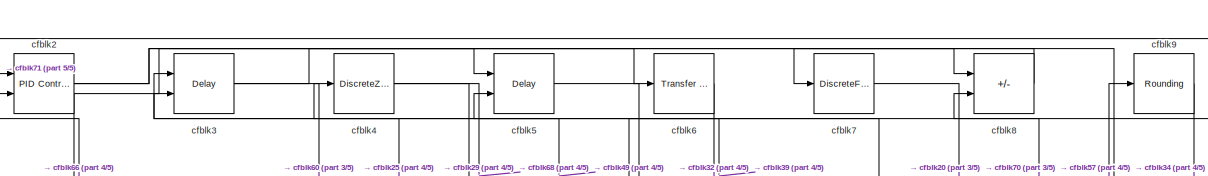
[diagram: root canvas - part 1/5, full width, top band]
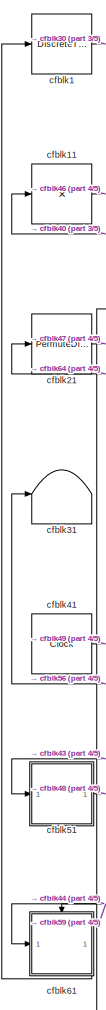
[diagram: root canvas - part 2/5, left side, full height]
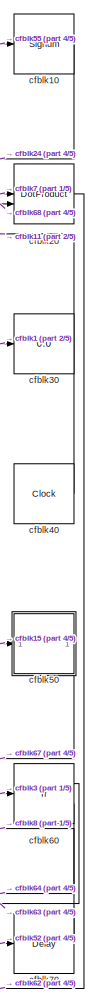
[diagram: root canvas - part 3/5, right side, full height]
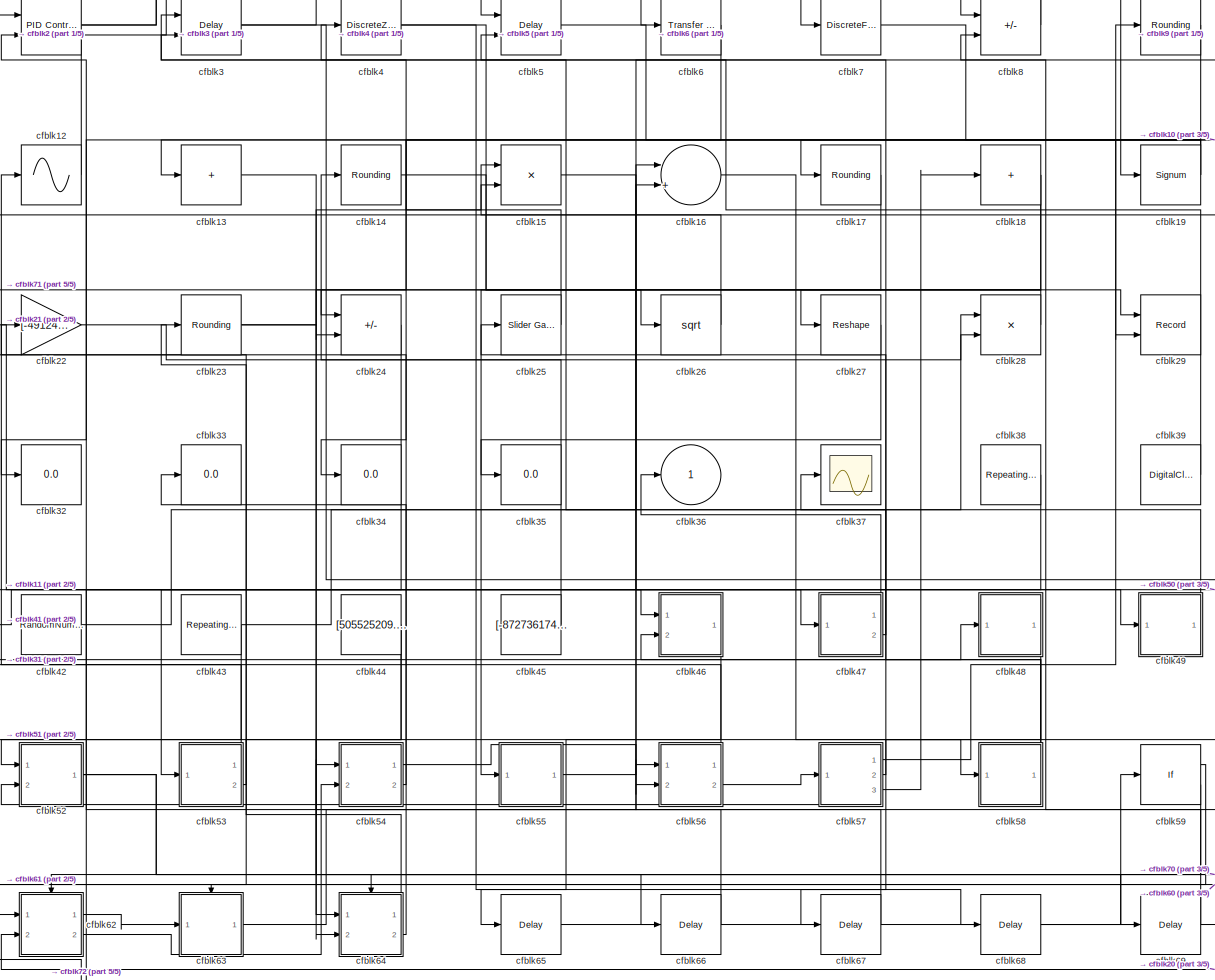
[diagram: root canvas - part 4/5, most of the canvas]
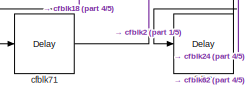
[diagram: root canvas - part 5/5, bottom left region]
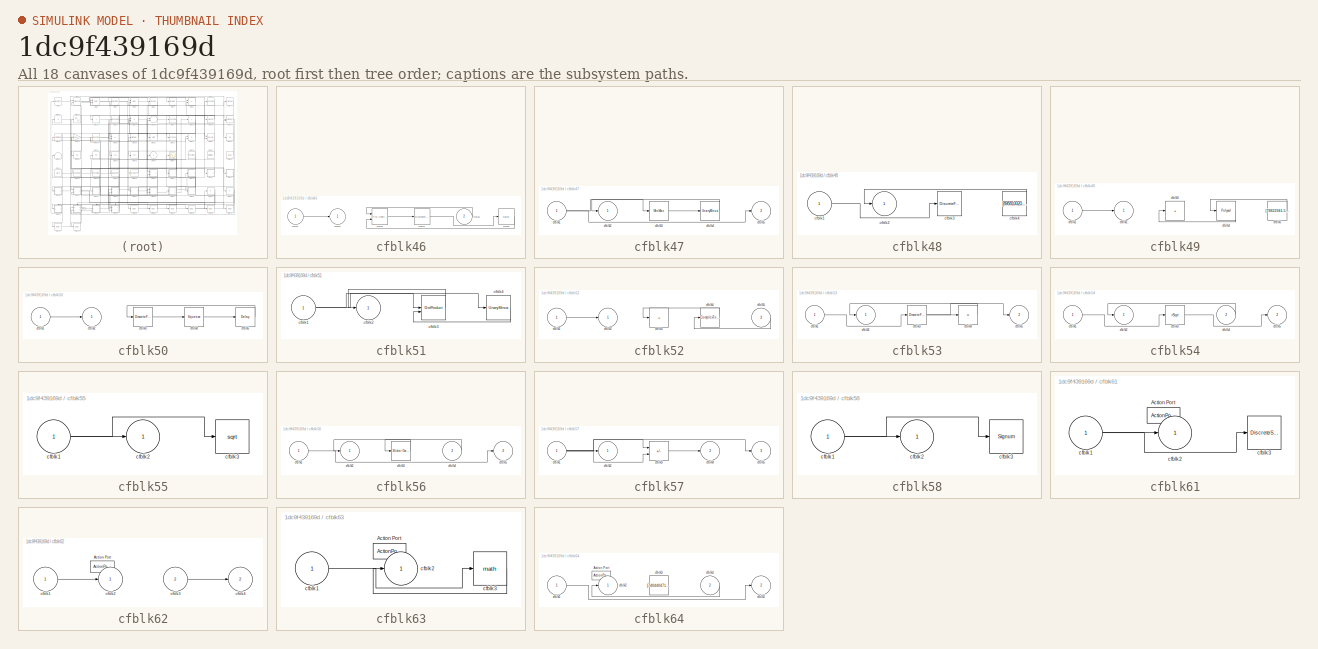
[diagram: thumbnail index - all 18 canvases of the model, root first then tree order]
MODEL slx_1dc9f439169d
KIND model
CONFIG AbsTol = auto
CONFIG EnableMultiTasking = off
CONFIG FixedStep = auto
CONFIG MaxStep = auto
CONFIG MinStep = auto
CONFIG RelTol = 1e-3
CONFIG SampleTimeConstraint = Unconstrained
CONFIG SolverName = VariableStepAuto
CONFIG StartTime = 0.0
CONFIG StopTime = 10.0
BLOCK [DiscreteTransferFcn] cfblk1
  InputPortMap = u0
  Ports = [1, 1]
  SampleTime = 1
BLOCK [Signum] cfblk10
BLOCK [Product] cfblk11
  Inputs = *
  Ports = [1, 1]
BLOCK [Sin] cfblk12
  Ports = [1, 1]
  SampleTime = 0
  TimeSource = Use external signal
BLOCK [Sum] cfblk13
  IconShape = rectangular
  Inputs = +
  Ports = [1, 1]
BLOCK [Rounding] cfblk14
BLOCK [Product] cfblk15
  Ports = [2, 1]
BLOCK [Sum] cfblk16
  Inputs = |++
  Ports = [2, 1]
BLOCK [Rounding] cfblk17
BLOCK [Sum] cfblk18
  IconShape = rectangular
  Inputs = +
  Ports = [1, 1]
BLOCK [Signum] cfblk19
BLOCK [Reference] cfblk2  REF=slpidlib/PID Controller (2DOF)
  Ports = [2, 1]
  SourceBlock = slpidlib/PID Controller (2DOF)
  SourceProductBaseCode = SL
  SourceType = PID 2dof
BLOCK [DotProduct] cfblk20
  OutDataTypeStr = Inherit: Inherit via internal rule
BLOCK [PermuteDimensions] cfblk21
BLOCK [Gain] cfblk22
  Gain = [-491249915.763414]
BLOCK [Rounding] cfblk23
BLOCK [Sum] cfblk24
  IconShape = rectangular
  Inputs = --
  Ports = [2, 1]
BLOCK [Reference] cfblk25  REF=simulink/Math
Operations/Slider
Gain
  Ports = [1, 1]
  SourceBlock = simulink/Math\nOperations/Slider\nGain
  SourceProductBaseCode = SL
  SourceType = Slider Gain
BLOCK [Sqrt] cfblk26
BLOCK [Reshape] cfblk27
  Ports = [1, 1]
BLOCK [Product] cfblk28
  Inputs = **
  Ports = [2, 1]
BLOCK [Record] cfblk29
  CompatibilityTag = XY
  FileSettingsInternal = {"entries":[{"content":{"excelSettings":{"content":{},"type":"Streamout.ExcelSettings"}},"type":"Streamout.FileSettingStorage","uuid":"f730e0e7-53fe-464a-9a82-0900e3942749"}],"packageUris":["http://schema.mathworks.com/mf0/streamout_blocks/R2020a"],"version":"1.0"}
  Layout = [1 1]
  Ports = [2]
  SignalsInternal = {"entries":[{"content":{"signals":[{"content":{"blockPath":["sampleModel205/cfblk29"],"channel":[],"dimensions":[1,1],"domain":"sampleModel205/cfblk29","lineColor":"#a2142f","plots":[1],"port":1,"sid":[""],"signalID":7899,"signalName":"cfblk4"},"type":"RecordBlkView.Signal","uuid":"9c209e98-6881-4a35-a685-ad8e26a1ce75"},{"content":{"blockPath":["sampleModel205/cfblk29"],"channel":[],"dimensions":[...<+383ch>
  VisualizationBindings = {"xyplotplugin":{"info":[{"series":[{"bindingParametersList":[{"parameter":"X-Axis","signalID":7899,"signalName":"cfblk4"},{"parameter":"Y-Axis","signalID":7903,"signalName":"cfblk5"}],"seriesID":36192}],"subplotID":1}]}}
BLOCK [Delay] cfblk3
  DelayLengthSource = Input port
  InputPortMap = u0,p1
  Ports = [2, 1]
  SampleTime = 1
BLOCK [Display] cfblk30
  Decimation = 1
  Ports = [1]
BLOCK [Terminator] cfblk31
BLOCK [Display] cfblk32
  Decimation = 1
  Ports = [1]
BLOCK [Display] cfblk33
  Decimation = 1
  Ports = [1]
BLOCK [Display] cfblk34
  Decimation = 1
  Ports = [1]
BLOCK [Display] cfblk35
  Decimation = 1
  Ports = [1]
BLOCK [Outport] cfblk36
BLOCK [Scope] cfblk37
  Floating = off
  NumInputPorts = 1
  Ports = [1]
BLOCK [Reference] cfblk38  REF=simulink/Sources/Repeating
Sequence
Stair
  Ports = [0, 1]
  SourceBlock = simulink/Sources/Repeating\nSequence\nStair
  SourceProductBaseCode = SL
  SourceType = Repeating Sequence Stair
BLOCK [DigitalClock] cfblk39
BLOCK [DiscreteZeroPole] cfblk4
  Gain = 1
  Poles = [0 0.5]
BLOCK [Clock] cfblk40
BLOCK [Clock] cfblk41
BLOCK [RandomNumber] cfblk42
  Mean = [64196.223504]
  SampleTime = 0.1
  Seed = [337225866.000000]
  Variance = [2477.301386]
BLOCK [Reference] cfblk43  REF=simulink/Sources/Repeating
Sequence
Stair
  Ports = [0, 1]
  SourceBlock = simulink/Sources/Repeating\nSequence\nStair
  SourceProductBaseCode = SL
  SourceType = Repeating Sequence Stair
BLOCK [Constant] cfblk44
  SampleTime = 1
  Value = [505525209.583436]
BLOCK [Constant] cfblk45
  SampleTime = 1
  Value = [-872736174.797935]
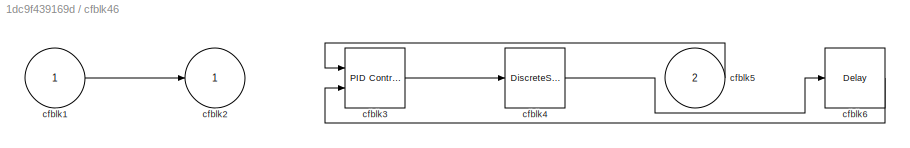
BLOCK [SubSystem] cfblk46
  Ports = [2, 1]
  RequestExecContextInheritance = off
BLOCK [Inport] cfblk46/cfblk1
BLOCK [Outport] cfblk46/cfblk2
BLOCK [Reference] cfblk46/cfblk3  REF=slpidlib/PID Controller (2DOF)
  Ports = [2, 1]
  SourceBlock = slpidlib/PID Controller (2DOF)
  SourceProductBaseCode = SL
  SourceType = PID 2dof
BLOCK [DiscreteStateSpace] cfblk46/cfblk4
BLOCK [Inport] cfblk46/cfblk5
  Port = 2
BLOCK [Delay] cfblk46/cfblk6
  InputPortMap = u0
  Ports = [1, 1]
  SampleTime = 1
BLOCK [SubSystem] cfblk47
  Ports = [1, 2]
  RequestExecContextInheritance = off
BLOCK [Inport] cfblk47/cfblk1
BLOCK [Outport] cfblk47/cfblk2
BLOCK [MinMax] cfblk47/cfblk3
  Function = max
  Ports = [1, 1]
BLOCK [UnaryMinus] cfblk47/cfblk4
BLOCK [Outport] cfblk47/cfblk5
  Port = 2
BLOCK [SubSystem] cfblk48
  Ports = [1, 1]
  RequestExecContextInheritance = off
BLOCK [Inport] cfblk48/cfblk1
BLOCK [Outport] cfblk48/cfblk2
BLOCK [DiscreteFir] cfblk48/cfblk3
  InputPortMap = u0
  OutputPortMap = o0
  Ports = [1, 1]
  SampleTime = 1
BLOCK [Constant] cfblk48/cfblk4
  SampleTime = 1
  Value = [895810020.108873]
BLOCK [SubSystem] cfblk49
  Ports = [1, 1]
  RequestExecContextInheritance = off
BLOCK [Inport] cfblk49/cfblk1
BLOCK [Outport] cfblk49/cfblk2
BLOCK [Sum] cfblk49/cfblk3
  IconShape = rectangular
  Inputs = +
  Ports = [1, 1]
BLOCK [Polyval] cfblk49/cfblk4
  Coefs = [ +2.081618890e-019, -1.441693666e-014, +4.719686976e-010, -8.536869453e-006, +1.621573104e-001, -8.087801117e+001 ]
BLOCK [Constant] cfblk49/cfblk5
  SampleTime = 1
  Value = [78822941.554705]
BLOCK [Delay] cfblk5
  InputPortMap = u0,e6
  Ports = [2, 1]
  SampleTime = 1
  ShowEnablePort = on
BLOCK [SubSystem] cfblk50
  Ports = [1, 1]
  RequestExecContextInheritance = off
BLOCK [Inport] cfblk50/cfblk1
BLOCK [Outport] cfblk50/cfblk2
BLOCK [DiscreteFir] cfblk50/cfblk3
  InputPortMap = u0
  OutputPortMap = o0
  Ports = [1, 1]
  SampleTime = 1
BLOCK [Squeeze] cfblk50/cfblk4
BLOCK [Delay] cfblk50/cfblk5
  InputPortMap = u0
  Ports = [1, 1]
  SampleTime = 1
BLOCK [SubSystem] cfblk51
  Ports = [1, 1]
  RequestExecContextInheritance = off
BLOCK [Inport] cfblk51/cfblk1
BLOCK [Outport] cfblk51/cfblk2
BLOCK [DotProduct] cfblk51/cfblk3
  OutDataTypeStr = Inherit: Inherit via internal rule
BLOCK [UnaryMinus] cfblk51/cfblk4
BLOCK [SubSystem] cfblk52
  Ports = [2, 1]
  RequestExecContextInheritance = off
BLOCK [Inport] cfblk52/cfblk1
BLOCK [Outport] cfblk52/cfblk2
BLOCK [Sum] cfblk52/cfblk3
  IconShape = rectangular
  Inputs = +
  Ports = [1, 1]
BLOCK [ComplexToMagnitudeAngle] cfblk52/cfblk4
  Ports = [1, 2]
BLOCK [Inport] cfblk52/cfblk5
  Port = 2
BLOCK [SubSystem] cfblk53
  Ports = [1, 2]
  RequestExecContextInheritance = off
BLOCK [Inport] cfblk53/cfblk1
BLOCK [Outport] cfblk53/cfblk2
BLOCK [DiscreteFir] cfblk53/cfblk3
  InputPortMap = u0
  OutputPortMap = o0
  Ports = [1, 1]
  SampleTime = 1
BLOCK [Product] cfblk53/cfblk4
  Inputs = *
  Ports = [1, 1]
BLOCK [Outport] cfblk53/cfblk5
  Port = 2
BLOCK [SubSystem] cfblk54
  Ports = [2, 2]
  RequestExecContextInheritance = off
BLOCK [Inport] cfblk54/cfblk1
BLOCK [Outport] cfblk54/cfblk2
BLOCK [Sqrt] cfblk54/cfblk3
  AlgorithmType = Newton-Raphson
  Operator = rSqrt
BLOCK [Inport] cfblk54/cfblk4
  Port = 2
BLOCK [Outport] cfblk54/cfblk5
  Port = 2
BLOCK [SubSystem] cfblk55
  Ports = [1, 1]
  RequestExecContextInheritance = off
BLOCK [Inport] cfblk55/cfblk1
BLOCK [Outport] cfblk55/cfblk2
BLOCK [Sqrt] cfblk55/cfblk3
BLOCK [SubSystem] cfblk56
  Ports = [2, 2]
  RequestExecContextInheritance = off
BLOCK [Inport] cfblk56/cfblk1
BLOCK [Outport] cfblk56/cfblk2
BLOCK [Reference] cfblk56/cfblk3  REF=simulink/Math
Operations/Slider
Gain
  Ports = [1, 1]
  SourceBlock = simulink/Math\nOperations/Slider\nGain
  SourceProductBaseCode = SL
  SourceType = Slider Gain
BLOCK [Inport] cfblk56/cfblk4
  Port = 2
BLOCK [Outport] cfblk56/cfblk5
  Port = 2
BLOCK [SubSystem] cfblk57
  Ports = [1, 3]
  RequestExecContextInheritance = off
BLOCK [Inport] cfblk57/cfblk1
BLOCK [Outport] cfblk57/cfblk2
BLOCK [Sum] cfblk57/cfblk3
  IconShape = rectangular
  Inputs = +-
  Ports = [2, 1]
BLOCK [Outport] cfblk57/cfblk4
  Port = 2
BLOCK [Outport] cfblk57/cfblk5
  Port = 3
BLOCK [SubSystem] cfblk58
  Ports = [1, 1]
  RequestExecContextInheritance = off
BLOCK [Inport] cfblk58/cfblk1
BLOCK [Outport] cfblk58/cfblk2
BLOCK [Signum] cfblk58/cfblk3
BLOCK [If] cfblk59
  IfExpression = u1 >= 0
  Ports = [1, 2]
  SampleTime = 1
BLOCK [Reference] cfblk6  REF=simulink/Discrete/Transfer Fcn
First Order
  Ports = [1, 1]
  SourceBlock = simulink/Discrete/Transfer Fcn\nFirst Order
  SourceProductBaseCode = SL
  SourceType = First Order Transfer Fcn
BLOCK [If] cfblk60
  IfExpression = u1 >= 0
  Ports = [1, 2]
  SampleTime = 1
BLOCK [SubSystem] cfblk61
  Ports = [1, 1, 0, 0, 0, 0, 0, 1]
  RequestExecContextInheritance = off
  TreatAsAtomicUnit = on
BLOCK [ActionPort] cfblk61/Action Port
  ActionPortLabel = if(u1 >= 0)
BLOCK [Inport] cfblk61/cfblk1
BLOCK [Outport] cfblk61/cfblk2
BLOCK [DiscreteStateSpace] cfblk61/cfblk3
  SampleTime = -1
BLOCK [SubSystem] cfblk62
  Ports = [2, 2, 0, 0, 0, 0, 0, 1]
  RequestExecContextInheritance = off
  TreatAsAtomicUnit = on
BLOCK [ActionPort] cfblk62/Action Port
  ActionPortLabel = else
BLOCK [Inport] cfblk62/cfblk1
BLOCK [Outport] cfblk62/cfblk2
BLOCK [Inport] cfblk62/cfblk3
  Port = 2
BLOCK [Outport] cfblk62/cfblk4
  Port = 2
BLOCK [SubSystem] cfblk63
  Ports = [1, 1, 0, 0, 0, 0, 0, 1]
  RequestExecContextInheritance = off
  TreatAsAtomicUnit = on
BLOCK [ActionPort] cfblk63/Action Port
  ActionPortLabel = if(u1 >= 0)
BLOCK [Inport] cfblk63/cfblk1
BLOCK [Outport] cfblk63/cfblk2
BLOCK [Math] cfblk63/cfblk3
  Ports = [1, 1]
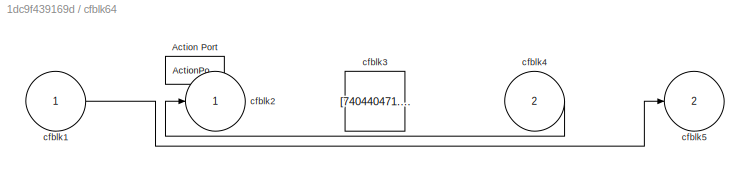
BLOCK [SubSystem] cfblk64
  Ports = [2, 2, 0, 0, 0, 0, 0, 1]
  RequestExecContextInheritance = off
  TreatAsAtomicUnit = on
BLOCK [ActionPort] cfblk64/Action Port
  ActionPortLabel = else
BLOCK [Inport] cfblk64/cfblk1
BLOCK [Outport] cfblk64/cfblk2
BLOCK [Constant] cfblk64/cfblk3
  SampleTime = 1
  Value = [740440471.780683]
BLOCK [Inport] cfblk64/cfblk4
  Port = 2
BLOCK [Outport] cfblk64/cfblk5
  Port = 2
BLOCK [Delay] cfblk65
  InputPortMap = u0
  Ports = [1, 1]
  SampleTime = 1
BLOCK [Delay] cfblk66
  InputPortMap = u0
  Ports = [1, 1]
  SampleTime = 1
BLOCK [Delay] cfblk67
  InputPortMap = u0
  Ports = [1, 1]
  SampleTime = 1
BLOCK [Delay] cfblk68
  InputPortMap = u0
  Ports = [1, 1]
  SampleTime = 1
BLOCK [Delay] cfblk69
  InputPortMap = u0
  Ports = [1, 1]
  SampleTime = 1
BLOCK [DiscreteFir] cfblk7
  InputPortMap = u0
  OutputPortMap = o0
  Ports = [1, 1]
  SampleTime = 1
BLOCK [Delay] cfblk70
  InputPortMap = u0
  Ports = [1, 1]
  SampleTime = 1
BLOCK [Delay] cfblk71
  InputPortMap = u0
  Ports = [1, 1]
  SampleTime = 1
BLOCK [Delay] cfblk72
  InputPortMap = u0
  Ports = [1, 1]
  SampleTime = 1
BLOCK [Sum] cfblk8
  IconShape = rectangular
  Inputs = +-
  Ports = [2, 1]
BLOCK [Rounding] cfblk9
LINE cfblk10:1 -> cfblk24:1
LINE cfblk11:1 -> cfblk46:1
LINE cfblk12:1 -> cfblk19:1
LINE cfblk13:1 -> cfblk64:1
LINE cfblk14:1 -> cfblk26:1
LINE cfblk15:1 -> cfblk50:1
LINE cfblk16:1 -> cfblk58:1
LINE cfblk17:1 -> cfblk55:1
NET cfblk18:1 -> cfblk24:2, cfblk71:1
NET cfblk19:1 -> cfblk13:1, cfblk17:1
LINE cfblk1:1 -> cfblk30:1
LINE cfblk20:1 -> cfblk62:2
LINE cfblk21:1 -> cfblk47:1
LINE cfblk22:1 -> cfblk28:2
NET cfblk23:1 -> cfblk15:2, cfblk66:1
LINE cfblk24:1 -> cfblk72:1
LINE cfblk25:1 -> cfblk4:1
LINE cfblk26:1 -> cfblk15:1
LINE cfblk27:1 -> cfblk35:1
LINE cfblk28:1 -> cfblk27:1
NET cfblk2:1 -> cfblk5:1, cfblk8:1
LINE cfblk38:1 -> cfblk53:1
LINE cfblk39:1 -> cfblk3:1
NET cfblk3:1 -> cfblk60:1, cfblk6:1
LINE cfblk40:1 -> cfblk11:1
LINE cfblk41:1 -> cfblk49:1
LINE cfblk42:1 -> cfblk28:1
NET cfblk43:1 -> cfblk16:2, cfblk51:1
NET cfblk44:1 -> cfblk61:1, cfblk64:2
LINE cfblk45:1 -> cfblk14:1
LINE cfblk46/cfblk1:1 -> cfblk46/cfblk2:1
LINE cfblk46/cfblk3:1 -> cfblk46/cfblk4:1
LINE cfblk46/cfblk4:1 -> cfblk46/cfblk6:1
LINE cfblk46/cfblk5:1 -> cfblk46/cfblk3:1
LINE cfblk46/cfblk6:1 -> cfblk46/cfblk3:2
LINE cfblk46:1 -> cfblk65:1
NET cfblk47/cfblk1:1 -> cfblk47/cfblk3:1, cfblk47/cfblk5:1
LINE cfblk47/cfblk3:1 -> cfblk47/cfblk4:1
LINE cfblk47/cfblk4:1 -> cfblk47/cfblk2:1
LINE cfblk47:1 -> cfblk36:1
LINE cfblk47:2 -> cfblk25:1
LINE cfblk48/cfblk1:1 -> cfblk48/cfblk3:1
LINE cfblk48/cfblk4:1 -> cfblk48/cfblk2:1
LINE cfblk48:1 -> cfblk52:1
LINE cfblk49/cfblk1:1 -> cfblk49/cfblk2:1
LINE cfblk49/cfblk4:1 -> cfblk49/cfblk3:1
LINE cfblk49/cfblk5:1 -> cfblk49/cfblk4:1
LINE cfblk49:1 -> cfblk5:2
NET cfblk4:1 -> cfblk29:1, cfblk68:1
LINE cfblk50/cfblk1:1 -> cfblk50/cfblk2:1
LINE cfblk50/cfblk3:1 -> cfblk50/cfblk4:1
LINE cfblk50/cfblk4:1 -> cfblk50/cfblk5:1
LINE cfblk50/cfblk5:1 -> cfblk50/cfblk3:1
LINE cfblk50:1 -> cfblk67:1
NET cfblk51/cfblk1:1 -> cfblk51/cfblk3:1, cfblk51/cfblk4:1
LINE cfblk51/cfblk3:1 -> cfblk51/cfblk2:1
LINE cfblk51/cfblk4:1 -> cfblk51/cfblk3:2
LINE cfblk51:1 -> cfblk48:1
LINE cfblk52/cfblk1:1 -> cfblk52/cfblk2:1
LINE cfblk52/cfblk4:1 -> cfblk52/cfblk3:1
LINE cfblk52/cfblk5:1 -> cfblk52/cfblk4:1
NET cfblk52:1 -> cfblk69:1, cfblk70:1
LINE cfblk53/cfblk1:1 -> cfblk53/cfblk3:1
NET cfblk53/cfblk3:1 -> cfblk53/cfblk4:1, cfblk53/cfblk5:1
LINE cfblk53/cfblk4:1 -> cfblk53/cfblk2:1
LINE cfblk53:1 -> cfblk12:1
LINE cfblk53:2 -> cfblk22:1
LINE cfblk54/cfblk1:1 -> cfblk54/cfblk3:1
LINE cfblk54/cfblk3:1 -> cfblk54/cfblk5:1
LINE cfblk54/cfblk4:1 -> cfblk54/cfblk2:1
LINE cfblk54:1 -> cfblk56:2
LINE cfblk54:2 -> cfblk33:1
NET cfblk55/cfblk1:1 -> cfblk55/cfblk2:1, cfblk55/cfblk3:1
LINE cfblk55:1 -> cfblk10:1
LINE cfblk56/cfblk1:1 -> cfblk56/cfblk5:1
LINE cfblk56/cfblk3:1 -> cfblk56/cfblk2:1
LINE cfblk56/cfblk4:1 -> cfblk56/cfblk3:1
LINE cfblk56:1 -> cfblk31:1
LINE cfblk56:2 -> cfblk57:1
NET cfblk57/cfblk1:1 -> cfblk57/cfblk2:1, cfblk57/cfblk3:1, cfblk57/cfblk3:2, cfblk57/cfblk5:1
LINE cfblk57/cfblk3:1 -> cfblk57/cfblk4:1
LINE cfblk57:1 -> cfblk9:1
LINE cfblk57:2 -> cfblk3:2
NET cfblk57:3 -> cfblk18:1, cfblk52:2
NET cfblk58/cfblk1:1 -> cfblk58/cfblk2:1, cfblk58/cfblk3:1
NET cfblk58:1 -> cfblk37:1, cfblk46:2
LINE cfblk59:1 -> cfblk61:ifaction
LINE cfblk59:2 -> cfblk62:ifaction
LINE cfblk5:1 -> cfblk29:2
LINE cfblk60:1 -> cfblk63:ifaction
LINE cfblk60:2 -> cfblk64:ifaction
NET cfblk61/cfblk1:1 -> cfblk61/cfblk2:1, cfblk61/cfblk3:1
LINE cfblk61:1 -> cfblk1:1
LINE cfblk62/cfblk1:1 -> cfblk62/cfblk2:1
LINE cfblk62/cfblk3:1 -> cfblk62/cfblk4:1
LINE cfblk62:1 -> cfblk63:1
LINE cfblk62:2 -> cfblk54:2
LINE cfblk63/cfblk1:1 -> cfblk63/cfblk3:1
LINE cfblk63/cfblk3:1 -> cfblk63/cfblk2:1
LINE cfblk63:1 -> cfblk16:1
LINE cfblk64/cfblk1:1 -> cfblk64/cfblk5:1
LINE cfblk64/cfblk4:1 -> cfblk64/cfblk2:1
LINE cfblk64:1 -> cfblk23:1
LINE cfblk64:2 -> cfblk21:1
LINE cfblk65:1 -> cfblk59:1
LINE cfblk66:1 -> cfblk2:2
LINE cfblk67:1 -> cfblk56:1
LINE cfblk68:1 -> cfblk20:2
LINE cfblk69:1 -> cfblk54:1
LINE cfblk6:1 -> cfblk32:1
LINE cfblk70:1 -> cfblk8:2
LINE cfblk71:1 -> cfblk2:1
LINE cfblk72:1 -> cfblk62:1
LINE cfblk7:1 -> cfblk20:1
LINE cfblk8:1 -> cfblk7:1
LINE cfblk9:1 -> cfblk34:1
note: NET lines group one-source signal fan-out (src -> all destinations, sorted); 1:1 wires keep LINE
